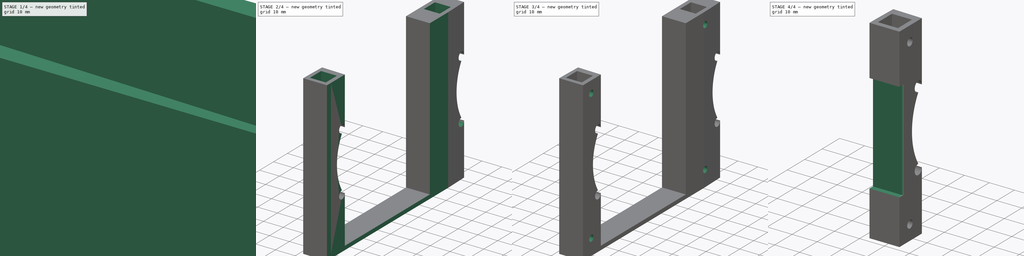
[diagram: build sequence overview — one tinted view per stage of 4, left to right]
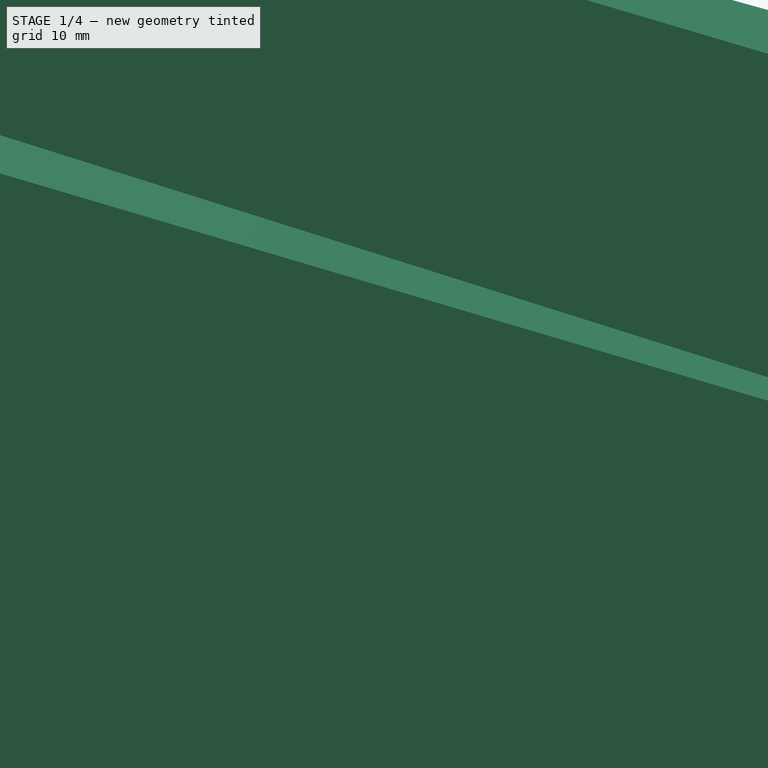
[diagram: stage 1 of 4 — iso view after this stage's code; geometry added in this stage tinted green]
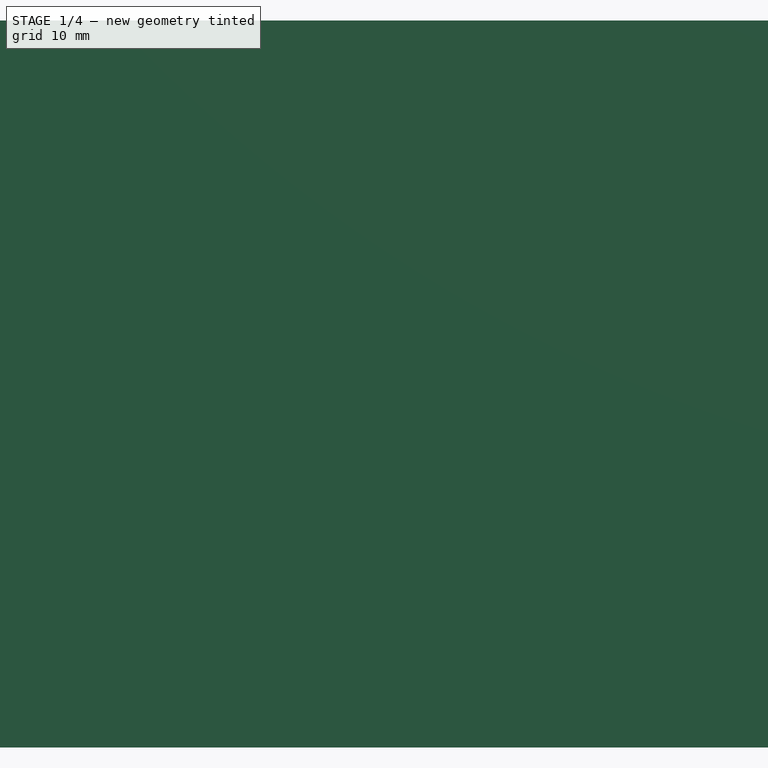
[diagram: stage 1 of 4 — front view after this stage's code; geometry added in this stage tinted green]
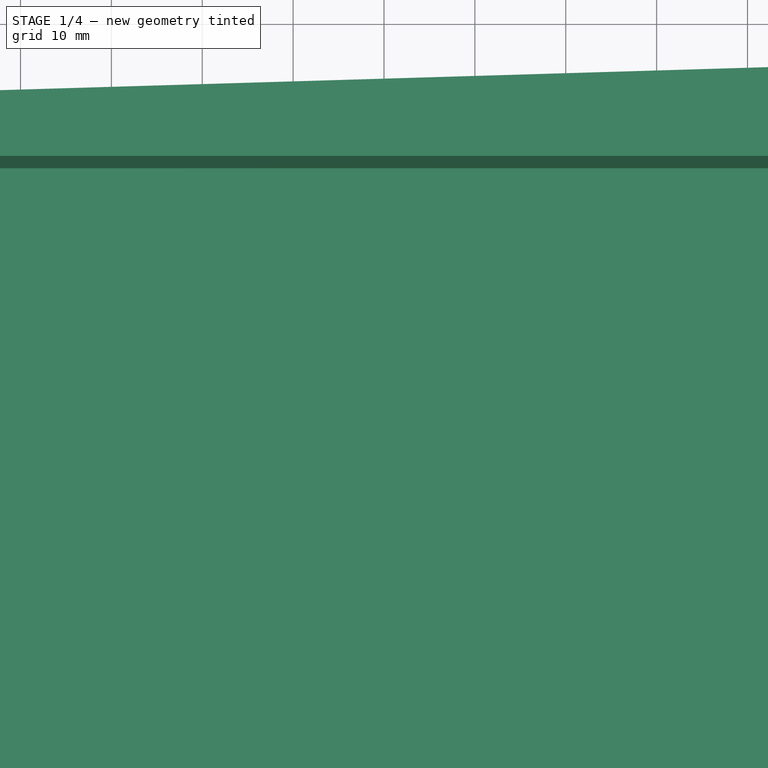
[diagram: stage 1 of 4 — top view after this stage's code; geometry added in this stage tinted green]
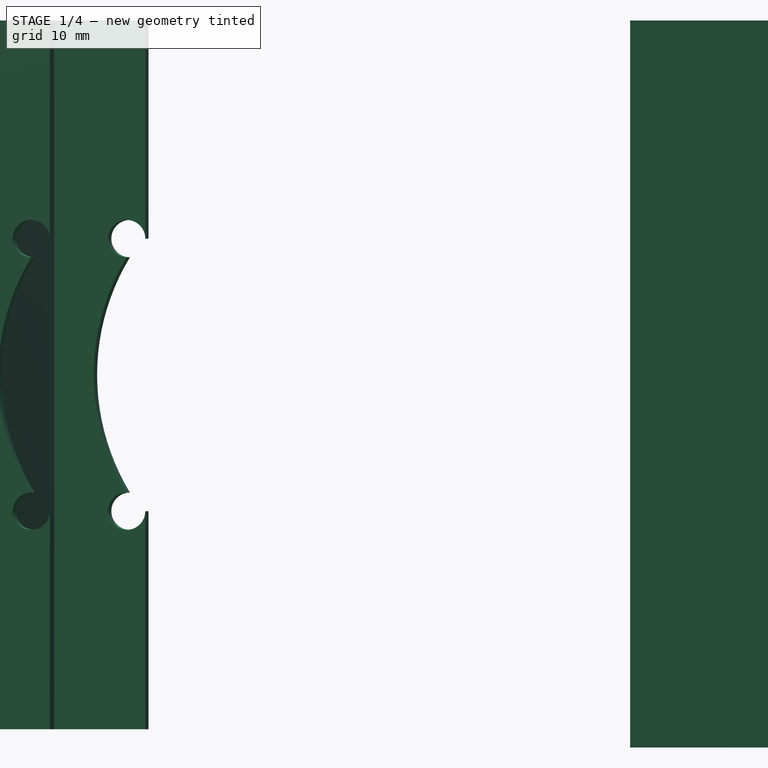
[diagram: stage 1 of 4 — right view after this stage's code; geometry added in this stage tinted green]
FCSTD DOCUMENT  (FreeCAD 0.19R)
Label: Support_Droit_Bas
License: All rights reserved
LicenseURL: http://en.wikipedia.org/wiki/All_rights_reserved
objects: Sketcher::SketchObject×10, PartDesign::Pocket×9, PartDesign::Pad×1, PartDesign::Fillet×1, PartDesign::Body×1
note: 33 computed .brp shape members not serialized (recipe doc carries the construction recipe); baked Part::Feature solids carry a one-line shape summary decoded from their .brp

FEATURE [Sketcher::SketchObject] Sketch
  FullyConstrained = false
  MapMode = 5
  Support = -> [XY_Plane]
  sketch-geometry (14):
    g0: LineSegment StartX=450 StartY=0 StartZ=0 EndX=450 EndY=90 EndZ=0
    g1: LineSegment StartX=450 StartY=0 StartZ=0 EndX=-50 EndY=0 EndZ=0
    g2: LineSegment StartX=-50 StartY=75 StartZ=0 EndX=-50 EndY=0 EndZ=0
    g3: LineSegment StartX=-208.652 StartY=70.2404 StartZ=0 EndX=496.352 EndY=91.3906 EndZ=0
    g4: LineSegment StartX=350 StartY=-44.981 StartZ=0 EndX=350 EndY=136.178 EndZ=0
    g5: LineSegment StartX=-6 StartY=76.32 StartZ=0 EndX=-6.36 EndY=88.32 EndZ=0
    g6: LineSegment StartX=-6.36 StartY=88.32 StartZ=0 EndX=5.64 EndY=88.68 EndZ=0
    g7: LineSegment StartX=5.64 StartY=88.68 StartZ=0 EndX=6 EndY=76.68 EndZ=0
    g8: LineSegment StartX=344 StartY=86.82 StartZ=0 EndX=343.64 EndY=98.82 EndZ=0
    g9: LineSegment StartX=343.64 StartY=98.82 StartZ=0 EndX=355.64 EndY=99.18 EndZ=0
    g10: LineSegment StartX=355.64 StartY=99.18 StartZ=0 EndX=356 EndY=87.18 EndZ=0
    g11: LineSegment StartX=-50 StartY=75 StartZ=0 EndX=-6 EndY=76.32 EndZ=0
    g12: LineSegment StartX=356 StartY=87.18 StartZ=0 EndX=450 EndY=90 EndZ=0
    g13: LineSegment StartX=344 StartY=86.82 StartZ=0 EndX=6 EndY=76.68 EndZ=0
  constraints (40):
    c: Vertical(g0)
    c: Coincident(g1,g0)
    c: PointOnObject(g1,g-1)
    c: Horizontal(g1)
    c: DistanceX(g1,g-1) = 50
    c: DistanceX(g1,g0) = 500
    c: Coincident(g2,g1)
    c: Vertical(g2)
    c: PointOnObject(g0,g3)
    c: PointOnObject(g2,g3)
    c: DistanceY(g0,g0) = 90
    c: DistanceY(g2,g2) = 75
    c: Vertical(g4)
    c: DistanceX(g-1,g4) = 350
    c: Coincident(g6,g5)
    c: Coincident(g7,g6)
    c: Coincident(g9,g8)
    c: Coincident(g10,g9)
    c: Coincident(g11,g2)
    c: Coincident(g12,g0)
    c: PointOnObject(g12,g3)
    c: Coincident(g13,g8)
    c: Coincident(g7,g13)
    c: Coincident(g11,g5)
    c: Coincident(g10,g12)
    c: PointOnObject(g8,g3)
    c: PointOnObject(g7,g3)
    c: PointOnObject(g5,g3)
    c: Parallel(g6,g9)
    c: Parallel(g9,g3)
    c: Perpendicular(g5,g11)
    c: Perpendicular(g13,g7)
    c: Perpendicular(g8,g13)
    c: Perpendicular(g12,g10)
    c: Equal(g6,g9)
    c: Equal(g9,g5)
    c: Equal(g5,g8)
    c: DistanceX(g6,g6) = 12
    c: DistanceX(g5,g-1) = 6
    c: DistanceX(g8,g4) = 6
FEATURE [PartDesign::Pad] Pad
  Direction = (1,1,1)
  Length = 80
  Length2 = 100
  Profile = -> Sketch
  Type = 0
FEATURE [Sketcher::SketchObject] Sketch001
  FullyConstrained = false
  MapMode = 5
  Placement = pos=(0,0,80) rot=(0,0,1;0rad)
  Support = -> [Pad]
  sketch-geometry (17):
    g0: LineSegment StartX=450 StartY=0 StartZ=0 EndX=-50 EndY=15 EndZ=0
    g1: LineSegment StartX=-50 StartY=15 StartZ=0 EndX=-50 EndY=74 EndZ=0
    g2: GeomPoint X=0 Y=79 Z=0
    g3: GeomPoint X=0 Y=13.5 Z=0
    g4: LineSegment StartX=350 StartY=158.708 StartZ=0 EndX=350 EndY=0 EndZ=0
    g5: GeomPoint X=350 Y=79.0004 Z=0
    g6: LineSegment StartX=-50 StartY=74 StartZ=0 EndX=450 EndY=74 EndZ=0
    g7: LineSegment StartX=-5.7 StartY=23.68 StartZ=0 EndX=6.3 EndY=23.32 EndZ=0
    g8: LineSegment StartX=344.3 StartY=13.18 StartZ=0 EndX=356.3 EndY=12.82 EndZ=0
    g9: LineSegment StartX=-5.7 StartY=23.68 StartZ=0 EndX=-6 EndY=13.68 EndZ=0
    g10: LineSegment StartX=6.3 StartY=23.32 StartZ=0 EndX=6 EndY=13.32 EndZ=0
    g11: LineSegment StartX=356.3 StartY=12.82 StartZ=0 EndX=356 EndY=2.82 EndZ=0
    g12: LineSegment StartX=-50 StartY=15 StartZ=0 EndX=-6 EndY=13.68 EndZ=0
    g13: LineSegment StartX=6 StartY=13.32 StartZ=0 EndX=344 EndY=3.18 EndZ=0
    g14: LineSegment StartX=356 StartY=2.82 StartZ=0 EndX=450 EndY=0 EndZ=0
    g15: LineSegment StartX=450 StartY=74 StartZ=0 EndX=450 EndY=0 EndZ=0
    g16: LineSegment StartX=344.3 StartY=13.18 StartZ=0 EndX=344 EndY=3.18 EndZ=0
  constraints (45):
    c: DistanceX(g0,g-1) = 50
    c: Coincident(g1,g0)
    c: Vertical(g1)
    c: PointOnObject(g2,g-2)
    c: PointOnObject(g3,g-2)
    c: PointOnObject(g3,g0)
    c: Vertical(g4)
    c: PointOnObject(g4,g-1)
    c: DistanceX(g-1,g4) = 350
    c: PointOnObject(g5,g4)
    c: Coincident(g6,g1)
    c: DistanceX(g-1,g0) = 450
    c: DistanceX(g6,g6) = 500
    c: Parallel(g0,g8)
    c: Parallel(g8,g7)
    c: Coincident(g12,g1)
    c: Coincident(g9,g12)
    c: Coincident(g7,g9)
    c: Coincident(g7,g10)
    c: Coincident(g10,g13)
    c: Perpendicular(g10,g7)
    c: Perpendicular(g7,g9)
    c: PointOnObject(g9,g0)
    c: PointOnObject(g10,g0)
    c: DistanceX(g9,g3) = 6
    c: DistanceX(g7,g7) = 12
    c: DistanceY(g9,g7) = 10
    c: Coincident(g8,g11)
    c: Perpendicular(g8,g11,g8) = 4.71239
    c: Equal(g7,g8)
    c: DistanceX(g13,g4) = 6
    c: PointOnObject(g13,g0)
    c: Coincident(g11,g14)
    c: PointOnObject(g11,g0)
    c: Coincident(g14,g0)
    c: Coincident(g15,g6)
    c: Coincident(g15,g14)
    c: PointOnObject(g14,g-1)
    c: Coincident(g16,g8)
    c: Coincident(g16,g13)
    c: Perpendicular(g8,g16)
    c: Equal(g16,g9)
    c: Horizontal(g6)
    c: DistanceY(g-1,g1) = 15
    c: DistanceY(g-1,g1) = 74
FEATURE [PartDesign::Pocket] Pocket
  BaseFeature = -> Pad
  Length = 78
  Length2 = 100
  Profile = -> Sketch001
  Type = 0
FEATURE [Sketcher::SketchObject] Sketch002
  ExternalGeometry = -> [Pocket]
  FullyConstrained = true
  MapMode = 5
  Placement = pos=(355.595,-10.6679,0) rot=(0.588893,0.571491,0.571491;2.07717rad)
  Support = -> [Pocket]
  sketch-geometry (4):
    g0: ArcOfCircle CenterX=21.4484 CenterY=56 CenterZ=0 NormalX=0 NormalY=0 NormalZ=1 AngleXU=0 Radius=2.05 StartAngle=0 EndAngle=4.71239
    g1: ArcOfCircle CenterX=21.4484 CenterY=26 CenterZ=0 NormalX=0 NormalY=0 NormalZ=1 AngleXU=0 Radius=2.05 StartAngle=1.5708 EndAngle=6.28319
    g2: LineSegment StartX=23.4984 StartY=26 StartZ=0 EndX=23.4984 EndY=56 EndZ=0
    g3: ArcOfCircle CenterX=42.8329 CenterY=41 CenterZ=0 NormalX=0 NormalY=0 NormalZ=1 AngleXU=0 Radius=25 StartAngle=2.59708 EndAngle=3.6861
  constraints (15):
    c: PointOnObject(g1,g-3)
    c: Horizontal(g1,g1)
    c: Horizontal(g0,g0)
    c: Coincident(g2,g1)
    c: Coincident(g0,g2)
    c: PointOnObject(g0,g-3)
    c: Coincident(g3,g1)
    c: Coincident(g3,g0)
    c: Vertical(g1,g1)
    c: Vertical(g1,g0)
    c: Vertical(g0,g0)
    c: Diameter(g0) = 4.1
    c: DistanceY(g1,g0) = 30
    c: Diameter(g3) = 50
    c: DistanceY(g-3,g3) = 39
FEATURE [PartDesign::Pocket] Pocket001
  BaseFeature = -> Pocket
  Length = 5
  Length2 = 100
  Profile = -> Sketch002
  Type = 1
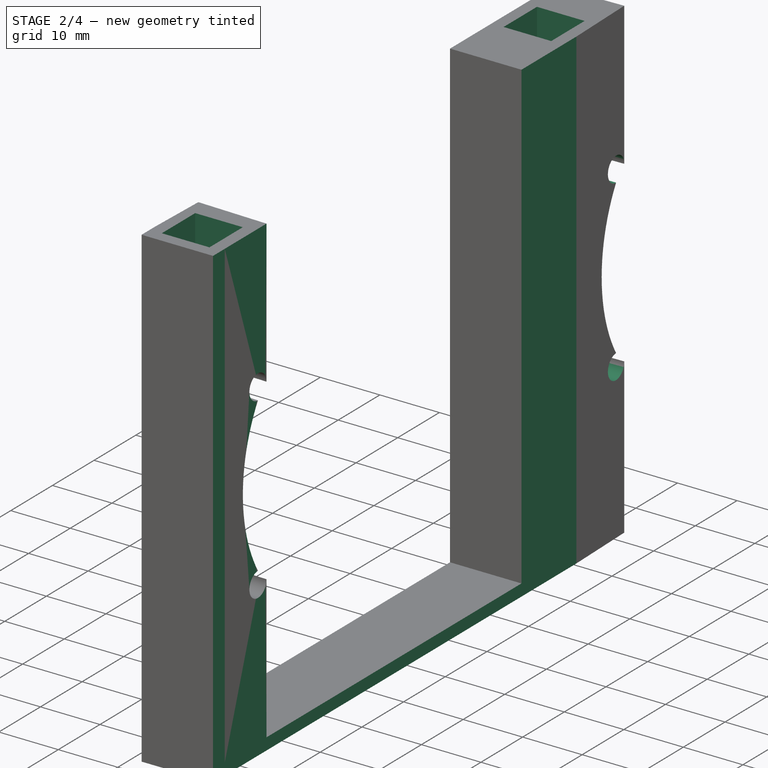
[diagram: stage 2 of 4 — iso view after this stage's code; geometry added in this stage tinted green]
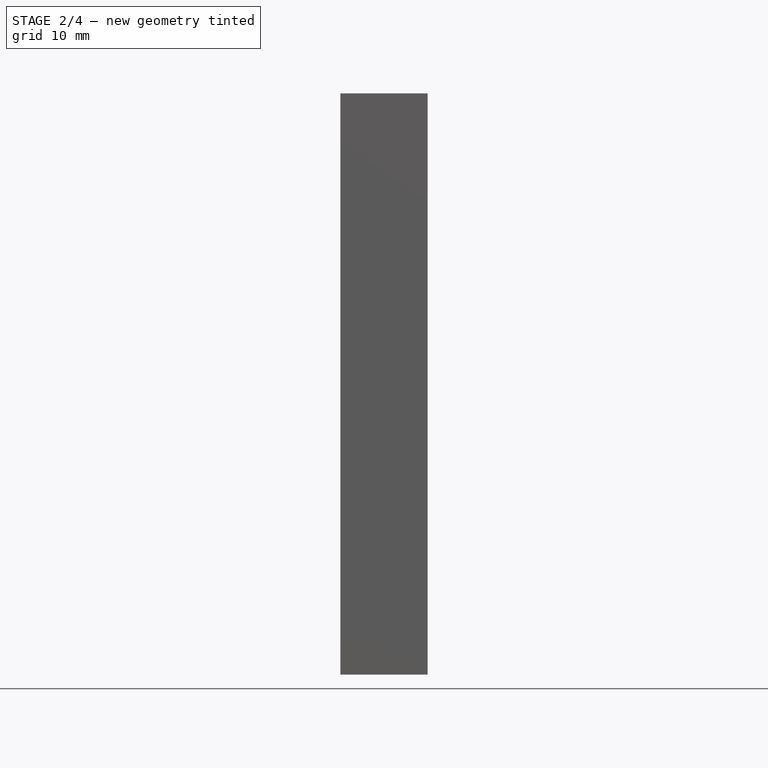
[diagram: stage 2 of 4 — front view after this stage's code; geometry added in this stage tinted green]
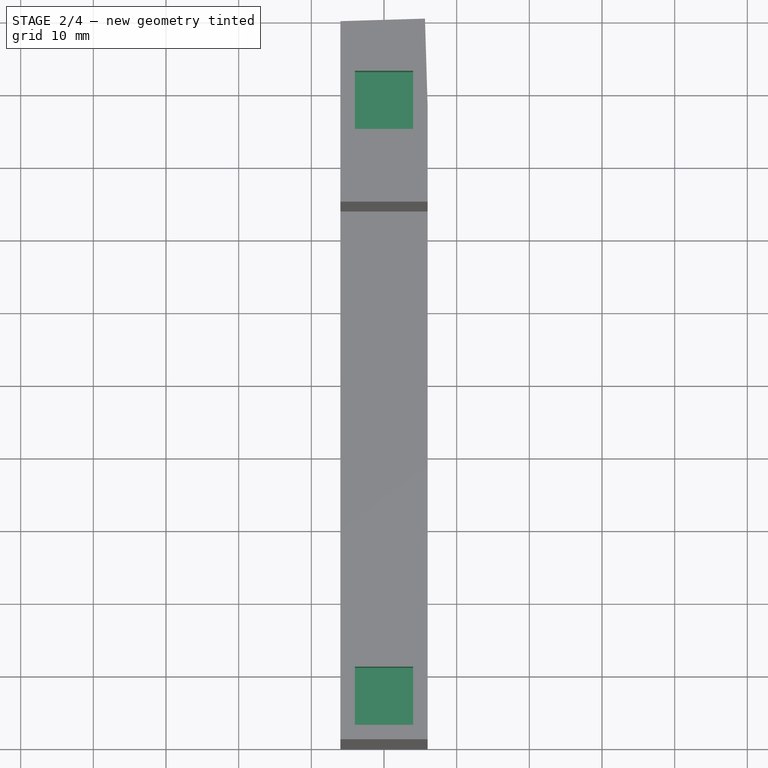
[diagram: stage 2 of 4 — top view after this stage's code; geometry added in this stage tinted green]
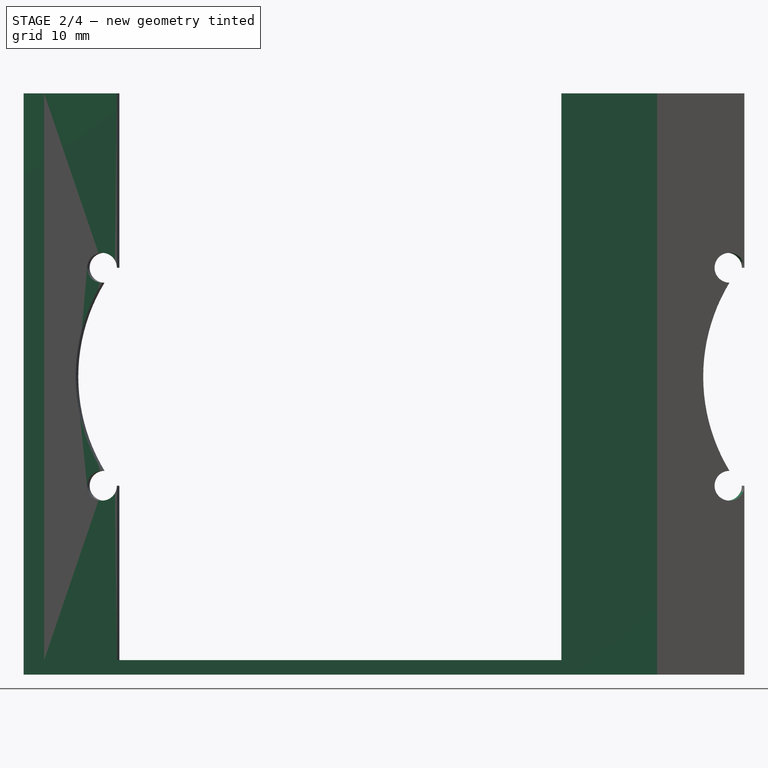
[diagram: stage 2 of 4 — right view after this stage's code; geometry added in this stage tinted green]
FEATURE [Sketcher::SketchObject] Sketch003
  ExternalGeometry = -> [Pocket001]
  FullyConstrained = true
  MapMode = 5
  Placement = pos=(358.293,10.7488,0) rot=(0.565807,0.583036,0.583036;2.1118rad)
  Support = -> [Pocket001]
  sketch-geometry (4):
    g0: ArcOfCircle CenterX=86.421 CenterY=56 CenterZ=0 NormalX=0 NormalY=0 NormalZ=1 AngleXU=0 Radius=2.05 StartAngle=1.5e-15 EndAngle=4.71239
    g1: ArcOfCircle CenterX=86.421 CenterY=26 CenterZ=0 NormalX=0 NormalY=0 NormalZ=1 AngleXU=0 Radius=2.05 StartAngle=1.5708 EndAngle=6.28319
    g2: LineSegment StartX=88.471 StartY=26 StartZ=0 EndX=88.471 EndY=56 EndZ=0
    g3: ArcOfCircle CenterX=107.806 CenterY=41 CenterZ=0 NormalX=0 NormalY=0 NormalZ=1 AngleXU=0 Radius=25 StartAngle=2.59708 EndAngle=3.6861
  constraints (15):
    c: Coincident(g2,g1)
    c: Coincident(g2,g0)
    c: Vertical(g0,g0)
    c: Vertical(g0,g1)
    c: Vertical(g1,g1)
    c: Horizontal(g0,g0)
    c: Horizontal(g1,g1)
    c: DistanceY(g1,g0) = 30
    c: Diameter(g0) = 4.1
    c: Coincident(g3,g0)
    c: Coincident(g3,g1)
    c: Diameter(g3) = 50
    c: PointOnObject(g0,g-3)
    c: Vertical(g2)
    c: DistanceY(g-4,g3) = 39
FEATURE [PartDesign::Pocket] Pocket002
  BaseFeature = -> Pocket001
  Length = 5
  Length2 = 100
  Profile = -> Sketch003
  Type = 1
FEATURE [Sketcher::SketchObject] Sketch004
  FullyConstrained = false
  MapMode = 5
  Placement = pos=(0,0,80) rot=(0,0,1;0rad)
  Support = -> [Pocket002]
  sketch-geometry (9):
    g0: LineSegment StartX=350 StartY=183.215 StartZ=0 EndX=350 EndY=-77.6233 EndZ=0
    g1: LineSegment StartX=-89.6092 StartY=131.865 StartZ=0 EndX=344 EndY=131.865 EndZ=0
    g2: LineSegment StartX=344 StartY=131.865 StartZ=0 EndX=344 EndY=-17.3724 EndZ=0
    g3: LineSegment StartX=344 StartY=-17.3724 StartZ=0 EndX=-89.6092 EndY=-17.3724 EndZ=0
    g4: LineSegment StartX=-89.6092 StartY=-17.3724 StartZ=0 EndX=-89.6092 EndY=131.865 EndZ=0
    g5: LineSegment StartX=356 StartY=131.865 StartZ=0 EndX=470.034 EndY=131.865 EndZ=0
    g6: LineSegment StartX=470.034 StartY=131.865 StartZ=0 EndX=470.034 EndY=-18.8215 EndZ=0
    g7: LineSegment StartX=470.034 StartY=-18.8215 StartZ=0 EndX=356 EndY=-18.8215 EndZ=0
    g8: LineSegment StartX=356 StartY=-18.8215 StartZ=0 EndX=356 EndY=131.865 EndZ=0
  constraints (20):
    c: Vertical(g0)
    c: DistanceX(g-1,g0) = 350
    c: Coincident(g1,g2)
    c: Coincident(g2,g3)
    c: Coincident(g3,g4)
    c: Coincident(g4,g1)
    c: Horizontal(g1)
    c: Horizontal(g3)
    c: Vertical(g2)
    c: Vertical(g4)
    c: Coincident(g5,g6)
    c: Coincident(g6,g7)
    c: Coincident(g7,g8)
    c: Coincident(g8,g5)
    c: Horizontal(g5)
    c: Horizontal(g7)
    c: Vertical(g6)
    c: Vertical(g8)
    c: Symmetric(g1,g5,g0)
    c: DistanceX(g1,g5) = 12
FEATURE [PartDesign::Pocket] Pocket003  label="Pocket003-Decoupe-Pilier"
  BaseFeature = -> Pocket002
  Length = 5
  Length2 = 100
  Profile = -> Sketch004
  Type = 1
FEATURE [Sketcher::SketchObject] Sketch005
  FullyConstrained = false
  MapMode = 5
  Placement = pos=(0,0,80) rot=(0,0,1;0rad)
  Support = -> [Pocket003]
  sketch-geometry (9):
    g0: LineSegment StartX=346 StartY=92 StartZ=0 EndX=354 EndY=92 EndZ=0
    g1: LineSegment StartX=354 StartY=92 StartZ=0 EndX=354 EndY=84 EndZ=0
    g2: LineSegment StartX=354 StartY=84 StartZ=0 EndX=346 EndY=84 EndZ=0
    g3: LineSegment StartX=346 StartY=84 StartZ=0 EndX=346 EndY=92 EndZ=0
    g4: LineSegment StartX=346 StartY=10 StartZ=0 EndX=354 EndY=10 EndZ=0
    g5: LineSegment StartX=354 StartY=10 StartZ=0 EndX=354 EndY=2 EndZ=0
    g6: LineSegment StartX=354 StartY=2 StartZ=0 EndX=346 EndY=2 EndZ=0
    g7: LineSegment StartX=346 StartY=2 StartZ=0 EndX=346 EndY=10 EndZ=0
    g8: LineSegment StartX=350 StartY=149.909 StartZ=0 EndX=350 EndY=-65.7171 EndZ=0
  constraints (25):
    c: Coincident(g0,g1)
    c: Coincident(g1,g2)
    c: Coincident(g2,g3)
    c: Coincident(g3,g0)
    c: Horizontal(g0)
    c: Horizontal(g2)
    c: Vertical(g1)
    c: Vertical(g3)
    c: Coincident(g4,g5)
    c: Coincident(g5,g6)
    c: Coincident(g6,g7)
    c: Coincident(g7,g4)
    c: Horizontal(g4)
    c: Horizontal(g6)
    c: Vertical(g5)
    c: Vertical(g7)
    c: Equal(g7,g4)
    c: Equal(g4,g3)
    c: Equal(g3,g0)
    c: DistanceX(g0,g0) = 8
    c: DistanceX(g-1,g8) = 350
    c: DistanceY(g-1,g5) = 2
    c: Symmetric(g4,g4,g8)
    c: Vertical(g1,g4)
    c: DistanceY(g4,g1) = 74
FEATURE [PartDesign::Pocket] Pocket004
  BaseFeature = -> Pocket003
  Length = 10
  Length2 = 100
  Profile = -> Sketch005
  Type = 0
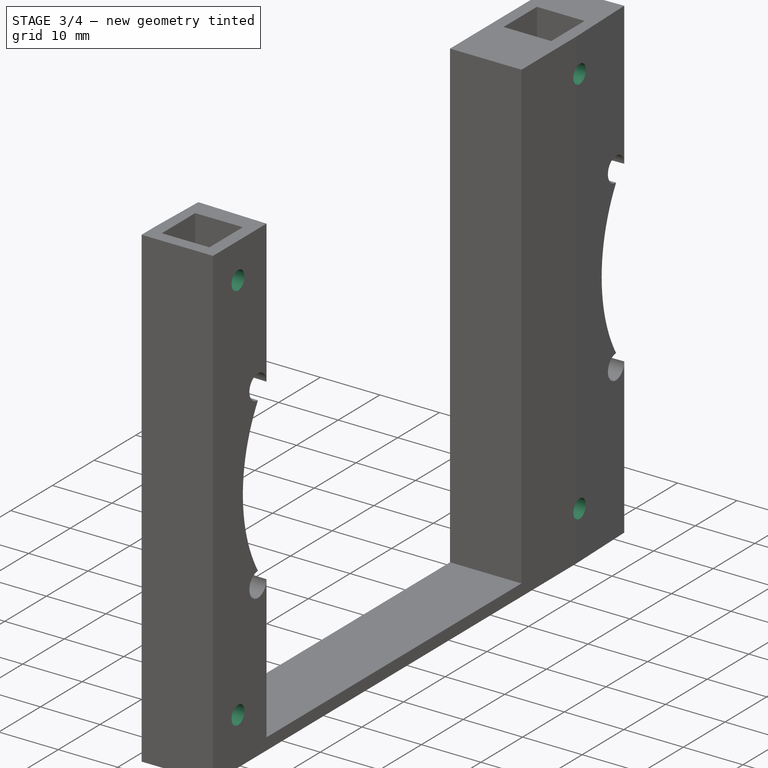
[diagram: stage 3 of 4 — iso view after this stage's code; geometry added in this stage tinted green]
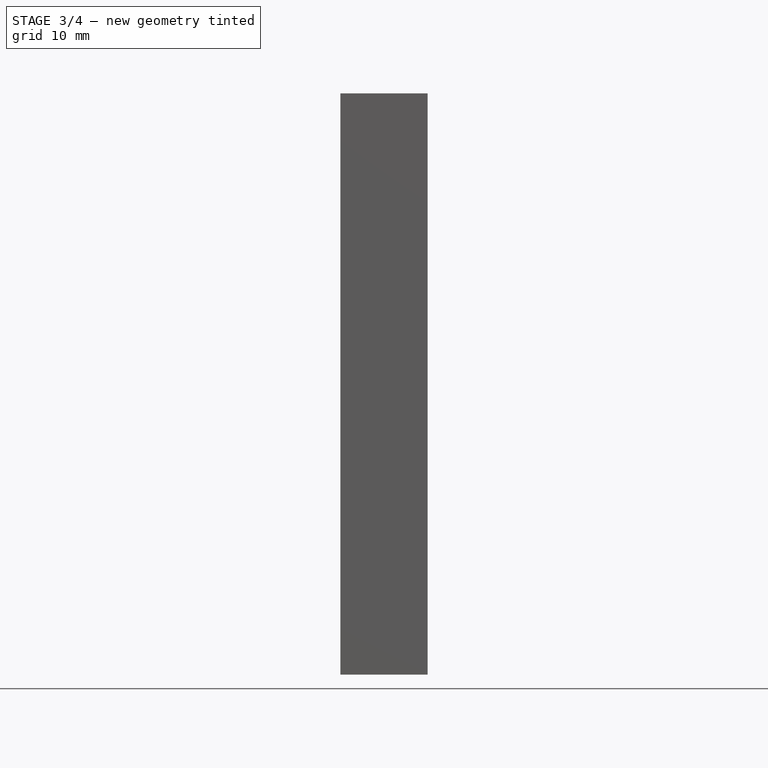
[diagram: stage 3 of 4 — front view after this stage's code; geometry added in this stage tinted green]
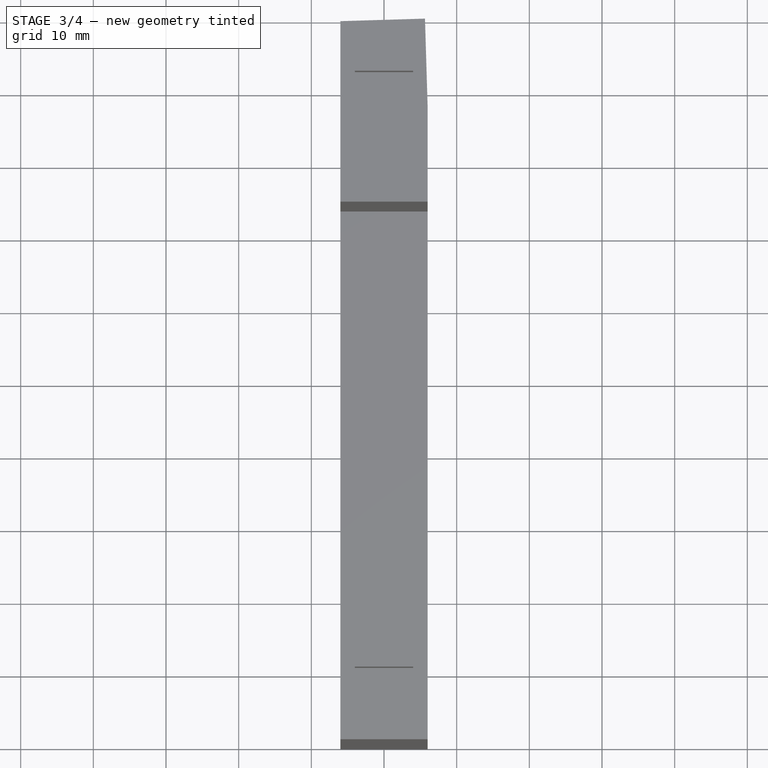
[diagram: stage 3 of 4 — top view after this stage's code; geometry added in this stage tinted green]
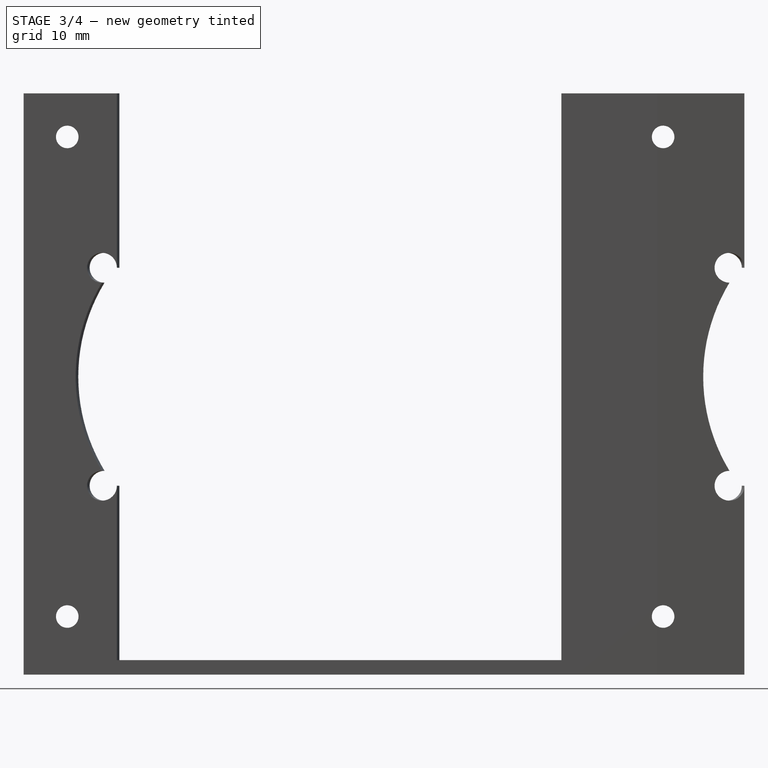
[diagram: stage 3 of 4 — right view after this stage's code; geometry added in this stage tinted green]
FEATURE [Sketcher::SketchObject] Sketch006
  FullyConstrained = false
  MapMode = 5
  Placement = pos=(0,0,0) rot=(1,0,0;3.14159rad)
  Support = -> [Pocket004]
  sketch-geometry (9):
    g0: LineSegment StartX=350 StartY=57.6665 StartZ=0 EndX=350 EndY=-159.989 EndZ=0
    g1: LineSegment StartX=346 StartY=-2 StartZ=0 EndX=354 EndY=-2 EndZ=0
    g2: LineSegment StartX=354 StartY=-2 StartZ=0 EndX=354 EndY=-10 EndZ=0
    g3: LineSegment StartX=354 StartY=-10 StartZ=0 EndX=346 EndY=-10 EndZ=0
    g4: LineSegment StartX=346 StartY=-10 StartZ=0 EndX=346 EndY=-2 EndZ=0
    g5: LineSegment StartX=346 StartY=-84 StartZ=0 EndX=354 EndY=-84 EndZ=0
    g6: LineSegment StartX=354 StartY=-84 StartZ=0 EndX=354 EndY=-92 EndZ=0
    g7: LineSegment StartX=354 StartY=-92 StartZ=0 EndX=346 EndY=-92 EndZ=0
    g8: LineSegment StartX=346 StartY=-92 StartZ=0 EndX=346 EndY=-84 EndZ=0
  constraints (25):
    c: Vertical(g0)
    c: DistanceX(g-1,g0) = 350
    c: Coincident(g1,g2)
    c: Coincident(g2,g3)
    c: Coincident(g3,g4)
    c: Coincident(g4,g1)
    c: Horizontal(g3)
    c: Vertical(g2)
    c: Vertical(g4)
    c: Coincident(g5,g6)
    c: Coincident(g6,g7)
    c: Coincident(g7,g8)
    c: Coincident(g8,g5)
    c: Horizontal(g5)
    c: Horizontal(g7)
    c: Vertical(g6)
    c: Vertical(g8)
    c: Equal(g6,g5)
    c: Equal(g5,g2)
    c: Equal(g2,g1)
    c: DistanceY(g2,g2) = 8
    c: Vertical(g5,g2)
    c: Symmetric(g1,g1,g0)
    c: DistanceY(g1,g-1) = 2
    c: DistanceY(g5,g2) = 74
FEATURE [PartDesign::Pocket] Pocket005
  BaseFeature = -> Pocket004
  Length = 12
  Length2 = 100
  Profile = -> Sketch006
  Type = 0
FEATURE [Sketcher::SketchObject] Sketch007
  FullyConstrained = true
  MapMode = 5
  Placement = pos=(356,0,0) rot=(0.57735,0.57735,0.57735;2.0944rad)
  Support = -> [Pocket005]
  sketch-geometry (4):
    g0: Circle CenterX=6 CenterY=74 CenterZ=0 NormalX=0 NormalY=0 NormalZ=1 AngleXU=0 Radius=1.55
    g1: Circle CenterX=88 CenterY=74 CenterZ=0 NormalX=0 NormalY=0 NormalZ=1 AngleXU=0 Radius=1.55
    g2: Circle CenterX=88 CenterY=8 CenterZ=0 NormalX=0 NormalY=0 NormalZ=1 AngleXU=0 Radius=1.55
    g3: Circle CenterX=6 CenterY=8 CenterZ=0 NormalX=0 NormalY=0 NormalZ=1 AngleXU=0 Radius=1.55
  constraints (12):
    c: Equal(g3,g2)
    c: Equal(g2,g1)
    c: Equal(g1,g0)
    c: Diameter(g1) = 3.1
    c: Vertical(g2,g1)
    c: Vertical(g3,g0)
    c: Horizontal(g0,g1)
    c: Horizontal(g3,g2)
    c: DistanceY(g-1,g0) = 74
    c: DistanceY(g3,g0) = 66
    c: DistanceX(g-1,g3) = 6
    c: DistanceX(g3,g2) = 82
FEATURE [PartDesign::Pocket] Pocket006
  BaseFeature = -> Pocket005
  Length = 5
  Length2 = 100
  Profile = -> Sketch007
  Type = 1
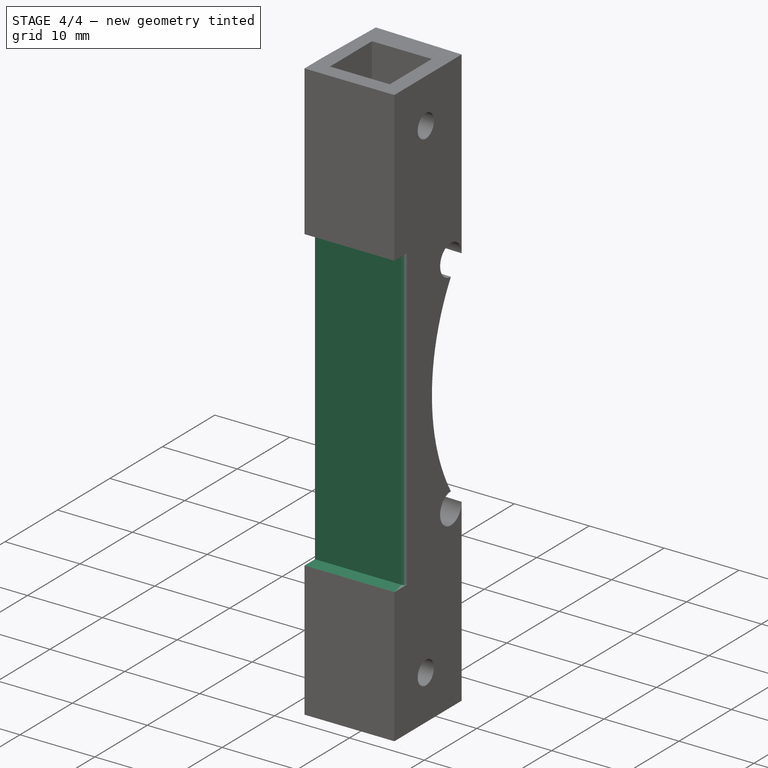
[diagram: stage 4 of 4 — iso view after this stage's code; geometry added in this stage tinted green]
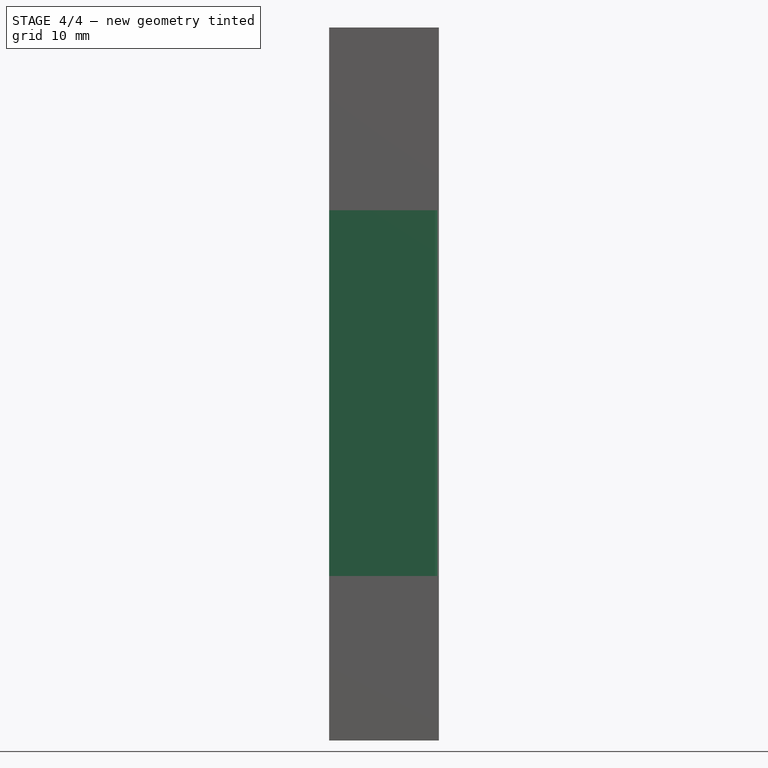
[diagram: stage 4 of 4 — front view after this stage's code; geometry added in this stage tinted green]
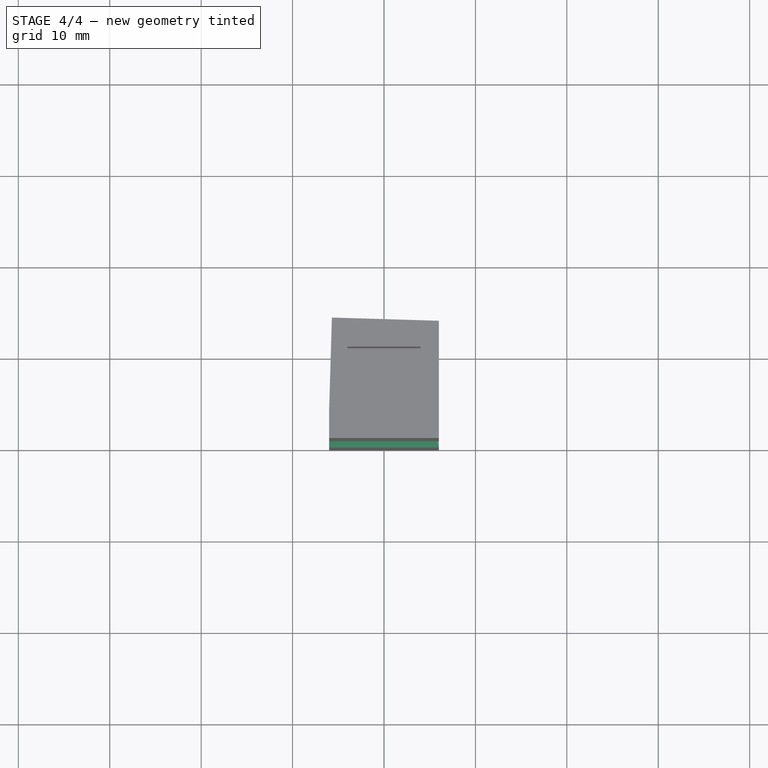
[diagram: stage 4 of 4 — top view after this stage's code; geometry added in this stage tinted green]
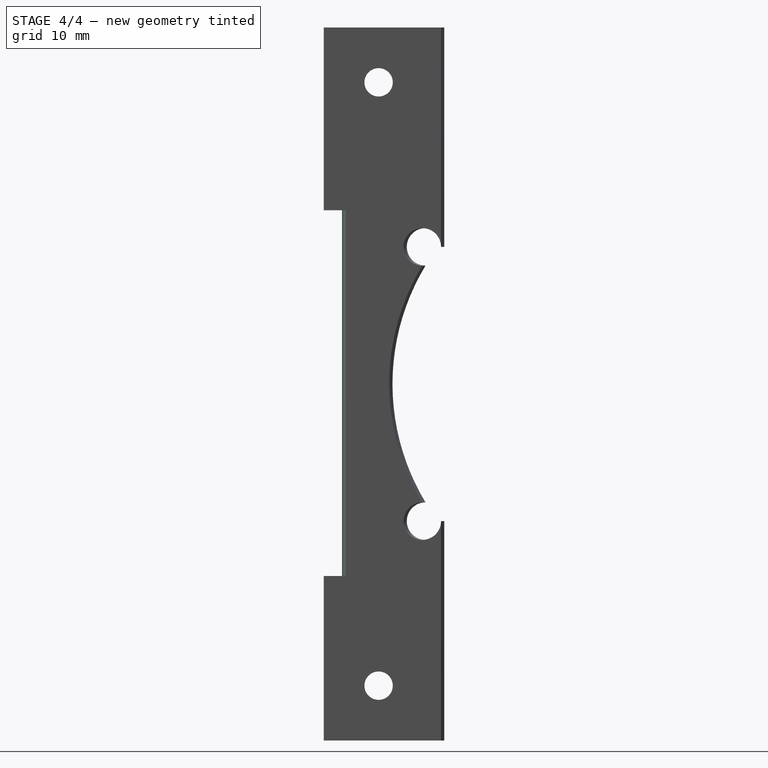
[diagram: stage 4 of 4 — right view after this stage's code; geometry added in this stage tinted green]
FEATURE [Sketcher::SketchObject] Sketch008
  ExternalGeometry = -> [Pocket006]
  FullyConstrained = false
  MapMode = 5
  Placement = pos=(344,0,0) rot=(0.57735,-0.57735,-0.57735;2.0944rad)
  Support = -> [Pocket006]
  sketch-geometry (6):
    g0: LineSegment StartX=-136.048 StartY=92.8116 StartZ=0 EndX=-13.18 EndY=92.8116 EndZ=0
    g1: LineSegment StartX=21.7017 StartY=-28.6087 StartZ=0 EndX=-136.048 EndY=-28.6087 EndZ=0
    g2: LineSegment StartX=-136.048 StartY=-28.6087 StartZ=0 EndX=-136.048 EndY=92.8116 EndZ=0
    g3: LineSegment StartX=21.7017 StartY=-28.6087 StartZ=0 EndX=21.7017 EndY=2 EndZ=0
    g4: LineSegment StartX=21.7017 StartY=2 StartZ=0 EndX=-13.18 EndY=2 EndZ=0
    g5: LineSegment StartX=-13.18 StartY=2 StartZ=0 EndX=-13.18 EndY=92.8116 EndZ=0
  constraints (13):
    c: Coincident(g1,g2)
    c: Coincident(g2,g0)
    c: Horizontal(g0)
    c: Horizontal(g1)
    c: Vertical(g2)
    c: Coincident(g3,g1)
    c: Vertical(g3)
    c: Coincident(g4,g3)
    c: Coincident(g4,g-3)
    c: Horizontal(g4)
    c: Coincident(g5,g4)
    c: Coincident(g5,g0)
    c: Vertical(g5)
FEATURE [PartDesign::Pocket] Pocket007
  BaseFeature = -> Pocket006
  Length = 5
  Length2 = 100
  Profile = -> Sketch008
  Type = 1
FEATURE [Sketcher::SketchObject] Sketch009
  ExternalGeometry = -> [Pocket007]
  FullyConstrained = true
  MapMode = 5
  Placement = pos=(356,0,0) rot=(0.57735,0.57735,0.57735;2.0944rad)
  Support = -> [Pocket007]
  sketch-geometry (4):
    g0: LineSegment StartX=0 StartY=60 StartZ=0 EndX=2 EndY=60 EndZ=0
    g1: LineSegment StartX=2 StartY=60 StartZ=0 EndX=2 EndY=20 EndZ=0
    g2: LineSegment StartX=2 StartY=20 StartZ=0 EndX=0 EndY=20 EndZ=0
    g3: LineSegment StartX=0 StartY=20 StartZ=0 EndX=0 EndY=60 EndZ=0
  constraints (12):
    c: Coincident(g0,g1)
    c: Coincident(g1,g2)
    c: Coincident(g2,g3)
    c: Coincident(g3,g0)
    c: Horizontal(g0)
    c: Horizontal(g2)
    c: Vertical(g1)
    c: Vertical(g3)
    c: PointOnObject(g0,g-2)
    c: DistanceX(g2,g2) = 2
    c: DistanceY(g-1,g2) = 20
    c: DistanceY(g0,g-3) = 20
FEATURE [PartDesign::Pocket] Pocket008
  BaseFeature = -> Pocket007
  Length = 5
  Length2 = 100
  Profile = -> Sketch009
  Type = 1
FEATURE [PartDesign::Fillet] Fillet
  Base = -> Pocket008 [Edge22]
  BaseFeature = -> Pocket008
  Radius = 0.5
  SupportTransform = false
FEATURE [PartDesign::Body] Body
  Group = -> [Sketch,Pad,Sketch001,Pocket,Sketch002,Pocket001,Sketch003,Pocket002,Sketch004,Pocket003,Sketch005,Pocket004,Sketch006,Pocket005,Sketch007,Pocket006,Sketch008,Pocket007,Sketch009,Pocket008,Fillet]
  Origin = -> Origin
  Tip = -> Fillet
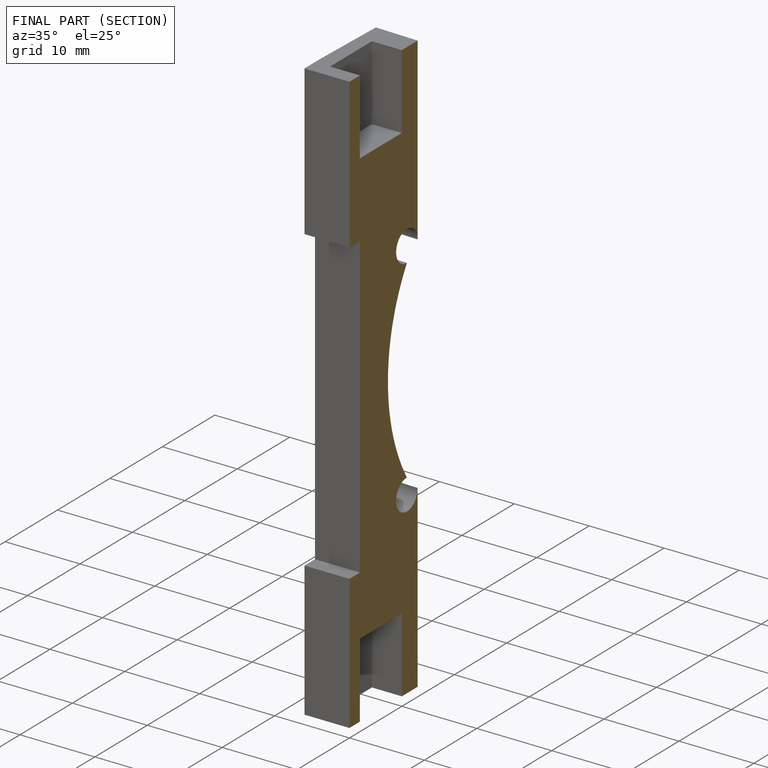
[diagram: finished part — half-section view (interior)]
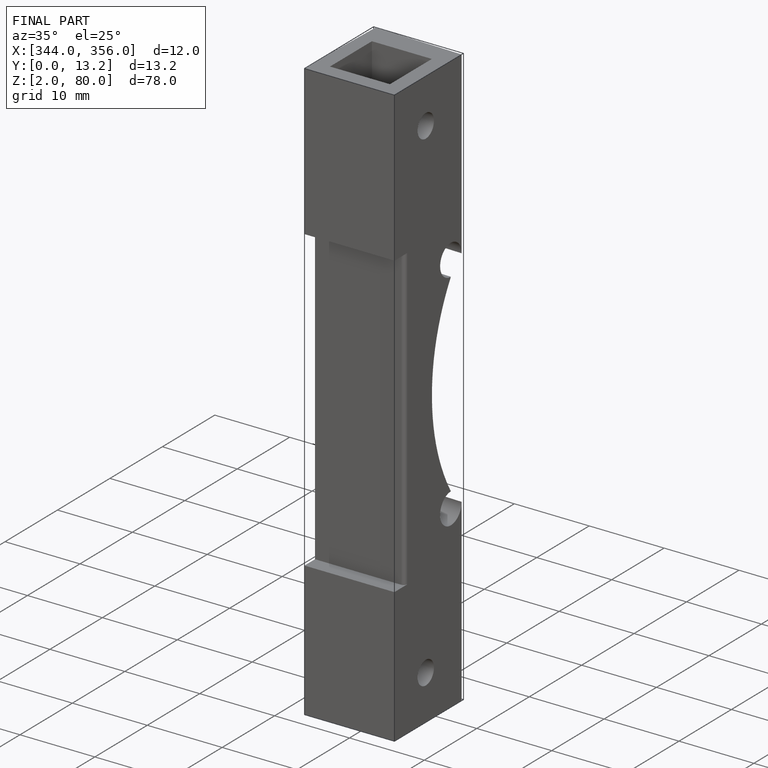
[diagram: finished part — iso view with bounding-box wireframe]
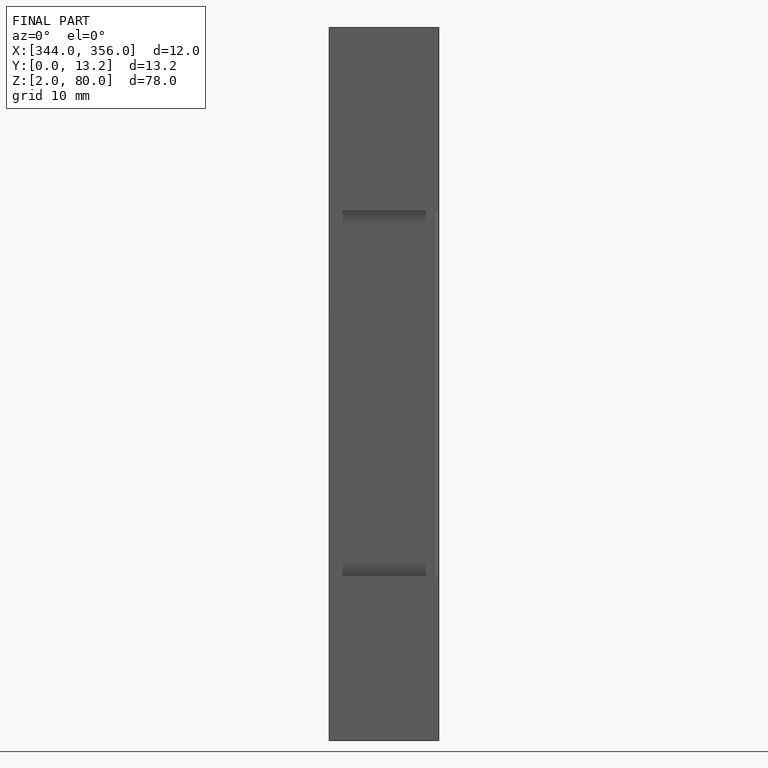
[diagram: finished part — front view with bounding-box wireframe]
